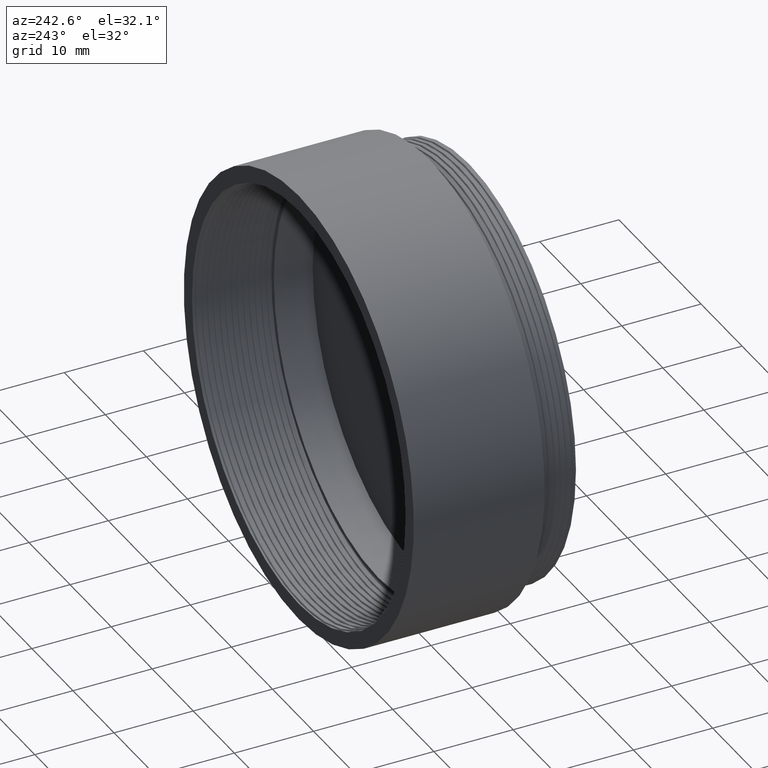
[diagram: clean part render]
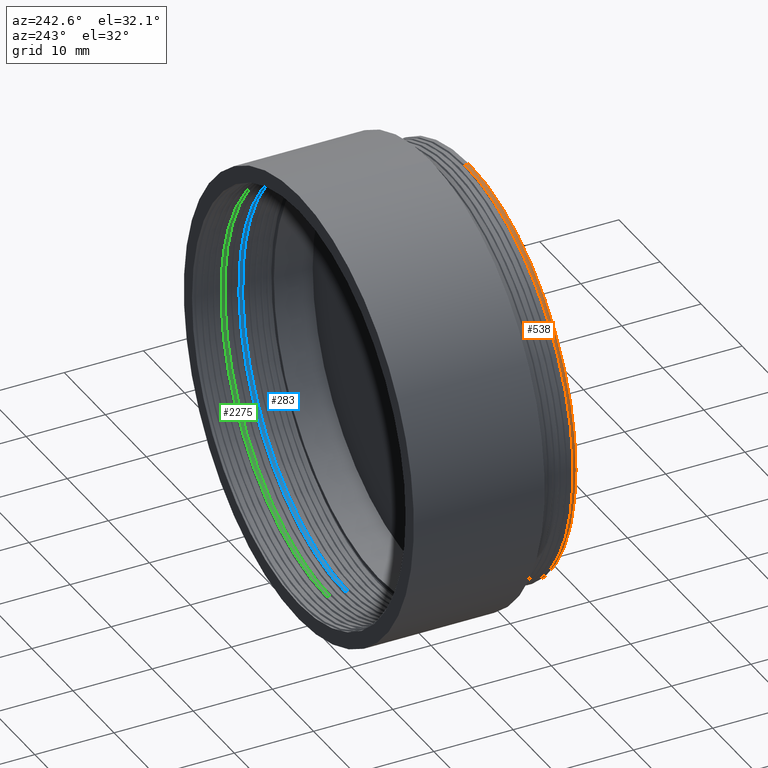
[diagram: same view with three faces highlighted in distinct colors, each labeled with its STEP entity id]
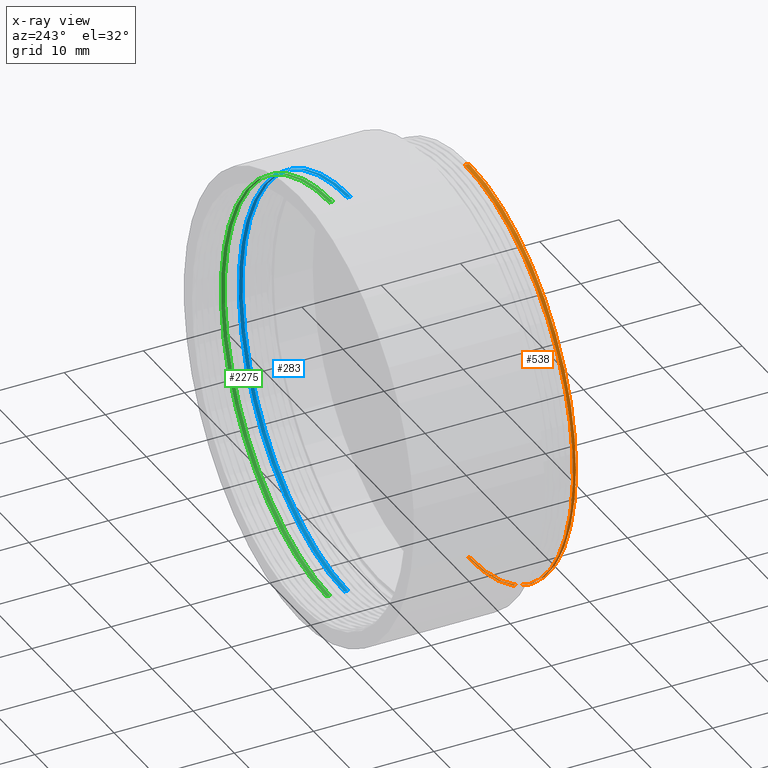
[diagram: x-ray of the same camera — body ghosted, the three highlighted faces saturated]
A machine part, auxiliary view with three faces highlighted in distinct colors.
The next image is the same camera in x-ray (body ghosted, the three faces saturated) — at least one of them is partly hidden behind the body in this view.
Their STEP definitions:

[orange] entity #538 — the highlighted cylindrical surface (partial cylindrical patch) has radius 26 mm, axis along (-0, -1, -0).
#91 = DIRECTION ( 'NONE',  ( 0.000000000000000000, 0.000000000000000000, -1.000000000000000000 ) ) ;
#223 = CARTESIAN_POINT ( 'NONE',  ( -10.76955262170047156, 0.2343750000000000000, -26.00000000000000000 ) ) ;
#538 = ADVANCED_FACE ( 'NONE', ( #2062 ), #2008, .T. ) ;
#656 = CARTESIAN_POINT ( 'NONE',  ( -10.76955262170047867, 0.5156250000000000000, 25.99999999999999645 ) ) ;
#965 = ORIENTED_EDGE ( 'NONE', *, *, #3501, .F. ) ;
#1022 = CARTESIAN_POINT ( 'NONE',  ( 1.592040838891559095E-15, 0.1875000000000000000, -26.00000000000000000 ) ) ;
#1150 = DIRECTION ( 'NONE',  ( 0.000000000000000000, 0.000000000000000000, -1.000000000000000000 ) ) ;
#1249 = ORIENTED_EDGE ( 'NONE', *, *, #1255, .F. ) ;
#1255 = EDGE_CURVE ( 'NONE', #3379, #5002, #3756, .T. ) ;
#1396 = CARTESIAN_POINT ( 'NONE',  ( 3.184081677783118191E-15, 0.000000000000000000, 26.00000000000000000 ) ) ;
#1668 = VERTEX_POINT ( 'NONE', #2141 ) ;
#1845 = CARTESIAN_POINT ( 'NONE',  ( 0.000000000000000000, 0.000000000000000000, 0.000000000000000000 ) ) ;
#1847 = VECTOR ( 'NONE', #4295, 1000.000000000000000 ) ;
#1915 = CARTESIAN_POINT ( 'NONE',  ( -18.38477631085023134, 0.2812500000000000555, -18.38477631085023489 ) ) ;
#2008 = CYLINDRICAL_SURFACE ( 'NONE', #2433, 26.00000000000000000 ) ;
#2062 = FACE_OUTER_BOUND ( 'NONE', #3629, .T. ) ;
#2141 = CARTESIAN_POINT ( 'NONE',  ( -4.776122516674677089E-15, 0.5625000000000001110, 26.00000000000000000 ) ) ;
#2332 = CARTESIAN_POINT ( 'NONE',  ( -18.38477631085023845, 0.4687500000000000000, 18.38477631085023134 ) ) ;
#2433 = AXIS2_PLACEMENT_3D ( 'NONE', #2864, #5368, #1150 ) ;
#2714 = CARTESIAN_POINT ( 'NONE',  ( -4.776122516674677089E-15, 0.5625000000000001110, 26.00000000000000000 ) ) ;
#2798 = CARTESIAN_POINT ( 'NONE',  ( -26.00000000000000000, 0.3281250000000000555, -10.76955262170047334 ) ) ;
#2864 = CARTESIAN_POINT ( 'NONE',  ( 0.000000000000000000, 0.000000000000000000, 0.000000000000000000 ) ) ;
#2912 = EDGE_CURVE ( 'NONE', #5151, #5002, #4328, .T. ) ;
#2938 = CARTESIAN_POINT ( 'NONE',  ( 3.184081677783118191E-15, 0.000000000000000000, 26.00000000000000000 ) ) ;
#2977 = EDGE_CURVE ( 'NONE', #1668, #3379, #5194, .T. ) ;
#3027 = DIRECTION ( 'NONE',  ( -0.000000000000000000, -1.000000000000000000, -0.000000000000000000 ) ) ;
#3054 = DIRECTION ( 'NONE',  ( -0.000000000000000000, -1.000000000000000000, -0.000000000000000000 ) ) ;
#3271 = VECTOR ( 'NONE', #3054, 1000.000000000000000 ) ;
#3379 = VERTEX_POINT ( 'NONE', #2938 ) ;
#3405 = CARTESIAN_POINT ( 'NONE',  ( 0.000000000000000000, 0.000000000000000000, -26.00000000000000000 ) ) ;
#3462 =( BOUNDED_CURVE ( )  B_SPLINE_CURVE ( 2, ( #1022, #223, #1915, #2798, #4490, #3608, #2332, #656, #2714 ),
 .UNSPECIFIED., .F., .T. ) 
 B_SPLINE_CURVE_WITH_KNOTS ( ( 3, 2, 2, 2, 3 ),
 ( 0.03571428571428571230, 0.05357142857142857539, 0.07142857142857142461, 0.08928571428571430157, 0.1071428571428571508 ),
 .UNSPECIFIED. ) 
 CURVE ( )  GEOMETRIC_REPRESENTATION_ITEM ( )  RATIONAL_B_SPLINE_CURVE ( ( 1.000000000000000000, 0.9238795325112867385, 1.000000000000000000, 0.9238795325112867385, 1.000000000000000000, 0.9238795325112867385, 1.000000000000000000, 0.9238795325112866275, 1.000000000000000000 ) ) 
 REPRESENTATION_ITEM ( '' )  );
#3501 = EDGE_CURVE ( 'NONE', #5151, #1668, #3462, .T. ) ;
#3504 = CARTESIAN_POINT ( 'NONE',  ( 0.000000000000000000, 0.000000000000000000, -26.00000000000000000 ) ) ;
#3608 = CARTESIAN_POINT ( 'NONE',  ( -26.00000000000001066, 0.4218750000000000000, 10.76955262170046623 ) ) ;
#3629 = EDGE_LOOP ( 'NONE', ( #4879, #965, #4418, #1249 ) ) ;
#3756 = CIRCLE ( 'NONE', #5170, 26.00000000000000000 ) ;
#4295 = DIRECTION ( 'NONE',  ( -0.000000000000000000, -1.000000000000000000, -0.000000000000000000 ) ) ;
#4328 = LINE ( 'NONE', #3504, #1847 ) ;
#4418 = ORIENTED_EDGE ( 'NONE', *, *, #2912, .T. ) ;
#4438 = CARTESIAN_POINT ( 'NONE',  ( 1.592040838891559095E-15, 0.1875000000000000000, -26.00000000000000000 ) ) ;
#4490 = CARTESIAN_POINT ( 'NONE',  ( -26.00000000000000000, 0.3750000000000000000, -3.184081677783118191E-15 ) ) ;
#4879 = ORIENTED_EDGE ( 'NONE', *, *, #2977, .F. ) ;
#5002 = VERTEX_POINT ( 'NONE', #3405 ) ;
#5151 = VERTEX_POINT ( 'NONE', #4438 ) ;
#5170 = AXIS2_PLACEMENT_3D ( 'NONE', #1845, #3027, #91 ) ;
#5194 = LINE ( 'NONE', #1396, #3271 ) ;
#5368 = DIRECTION ( 'NONE',  ( -0.000000000000000000, -1.000000000000000000, -0.000000000000000000 ) ) ;

[blue] entity #283 — the highlighted cylindrical surface (partial cylindrical patch) has radius 26 mm, axis along (-0, -1, -0).
#70 = EDGE_CURVE ( 'NONE', #3847, #307, #4917, .T. ) ;
#276 = CARTESIAN_POINT ( 'NONE',  ( 4.776122516674677089E-15, 15.40968750086715033, 26.00000000000000000 ) ) ;
#283 = ADVANCED_FACE ( 'NONE', ( #4870 ), #5193, .F. ) ;
#307 = VERTEX_POINT ( 'NONE', #1065 ) ;
#378 = CARTESIAN_POINT ( 'NONE',  ( 26.00000000000000000, 15.17187499999999822, -10.76955262170047334 ) ) ;
#769 = VECTOR ( 'NONE', #1708, 1000.000000000000000 ) ;
#1065 = CARTESIAN_POINT ( 'NONE',  ( 4.776122516674677089E-15, 14.93750000000000000, 26.00000000000000000 ) ) ;
#1359 = DIRECTION ( 'NONE',  ( -0.000000000000000000, -1.000000000000000000, -0.000000000000000000 ) ) ;
#1387 = EDGE_LOOP ( 'NONE', ( #3746, #1471, #4923, #1955 ) ) ;
#1471 = ORIENTED_EDGE ( 'NONE', *, *, #3642, .F. ) ;
#1631 = CARTESIAN_POINT ( 'NONE',  ( 26.00000000000000000, 15.59718750086715033, -3.184081677783118191E-15 ) ) ;
#1632 = CARTESIAN_POINT ( 'NONE',  ( 26.00000000000000000, 15.12499999999999822, -3.184081677783118191E-15 ) ) ;
#1708 = DIRECTION ( 'NONE',  ( -0.000000000000000000, -1.000000000000000000, -0.000000000000000000 ) ) ;
#1812 = CARTESIAN_POINT ( 'NONE',  ( -1.592040838891559095E-15, 15.78468750086714856, -26.00000000000000000 ) ) ;
#1955 = ORIENTED_EDGE ( 'NONE', *, *, #2173, .T. ) ;
#2077 = CARTESIAN_POINT ( 'NONE',  ( 26.00000000000000000, 15.64406250086715033, -10.76955262170047334 ) ) ;
#2078 = CARTESIAN_POINT ( 'NONE',  ( -1.592040838891559095E-15, 15.31249999999999822, -26.00000000000000000 ) ) ;
#2173 = EDGE_CURVE ( 'NONE', #5181, #307, #2724, .T. ) ;
#2255 = CARTESIAN_POINT ( 'NONE',  ( 0.000000000000000000, 0.000000000000000000, 0.000000000000000000 ) ) ;
#2389 = CARTESIAN_POINT ( 'NONE',  ( 10.76955262170047156, 15.73781250086715033, -26.00000000000000000 ) ) ;
#2414 = CARTESIAN_POINT ( 'NONE',  ( 18.38477631085023845, 15.50343750086715033, 18.38477631085023134 ) ) ;
#2468 = CARTESIAN_POINT ( 'NONE',  ( 18.38477631085023134, 15.21874999999999822, -18.38477631085023489 ) ) ;
#2724 =( BOUNDED_CURVE ( )  B_SPLINE_CURVE ( 2, ( #2078, #3739, #2468, #378, #1632, #3762, #3324, #5486, #5436 ),
 .UNSPECIFIED., .F., .F. ) 
 B_SPLINE_CURVE_WITH_KNOTS ( ( 3, 2, 2, 2, 3 ),
 ( 0.5892857142857143016, 0.5982142857142856984, 0.6071428571428569843, 0.6160714285714284921, 0.6249999999999998890 ),
 .UNSPECIFIED. ) 
 CURVE ( )  GEOMETRIC_REPRESENTATION_ITEM ( )  RATIONAL_B_SPLINE_CURVE ( ( 1.000000000000000000, 0.9238795325112867385, 1.000000000000000000, 0.9238795325112867385, 1.000000000000000000, 0.9238795325112867385, 1.000000000000000000, 0.9238795325112877377, 0.9999999999999990008 ) ) 
 REPRESENTATION_ITEM ( '' )  );
#2876 = CARTESIAN_POINT ( 'NONE',  ( -1.592040838891559095E-15, 15.78468750086714856, -26.00000000000000000 ) ) ;
#2935 = VERTEX_POINT ( 'NONE', #1812 ) ;
#3159 = CARTESIAN_POINT ( 'NONE',  ( 0.000000000000000000, 0.000000000000000000, -26.00000000000000000 ) ) ;
#3173 = DIRECTION ( 'NONE',  ( -0.000000000000000000, -1.000000000000000000, -0.000000000000000000 ) ) ;
#3176 = VECTOR ( 'NONE', #1359, 1000.000000000000000 ) ;
#3246 = CARTESIAN_POINT ( 'NONE',  ( 26.00000000000001066, 15.55031250086715211, 10.76955262170046623 ) ) ;
#3324 = CARTESIAN_POINT ( 'NONE',  ( 18.38477631085023845, 15.03124999999999822, 18.38477631085023134 ) ) ;
#3396 = AXIS2_PLACEMENT_3D ( 'NONE', #2255, #3173, #4419 ) ;
#3605 = EDGE_CURVE ( 'NONE', #2935, #5181, #5270, .T. ) ;
#3642 = EDGE_CURVE ( 'NONE', #2935, #3847, #4603, .T. ) ;
#3739 = CARTESIAN_POINT ( 'NONE',  ( 10.76955262170047156, 15.26562499999999822, -26.00000000000000000 ) ) ;
#3746 = ORIENTED_EDGE ( 'NONE', *, *, #70, .F. ) ;
#3762 = CARTESIAN_POINT ( 'NONE',  ( 26.00000000000001066, 15.07812500000000000, 10.76955262170046623 ) ) ;
#3847 = VERTEX_POINT ( 'NONE', #5040 ) ;
#4125 = CARTESIAN_POINT ( 'NONE',  ( 10.76955262170059058, 15.45656250086715211, 25.99999999999988987 ) ) ;
#4419 = DIRECTION ( 'NONE',  ( 0.000000000000000000, 0.000000000000000000, -1.000000000000000000 ) ) ;
#4495 = CARTESIAN_POINT ( 'NONE',  ( 3.184081677783118191E-15, 0.000000000000000000, 26.00000000000000000 ) ) ;
#4603 =( BOUNDED_CURVE ( )  B_SPLINE_CURVE ( 2, ( #2876, #2389, #5458, #2077, #1631, #3246, #2414, #4125, #276 ),
 .UNSPECIFIED., .F., .T. ) 
 B_SPLINE_CURVE_WITH_KNOTS ( ( 3, 2, 2, 2, 3 ),
 ( 0.5178571428571429047, 0.5267857142857143016, 0.5357142857142855874, 0.5446428571428569843, 0.5535714285714284921 ),
 .UNSPECIFIED. ) 
 CURVE ( )  GEOMETRIC_REPRESENTATION_ITEM ( )  RATIONAL_B_SPLINE_CURVE ( ( 1.000000000000000000, 0.9238795325112867385, 1.000000000000000000, 0.9238795325112867385, 1.000000000000000000, 0.9238795325112867385, 1.000000000000000000, 0.9238795325112877377, 0.9999999999999990008 ) ) 
 REPRESENTATION_ITEM ( '' )  );
#4870 = FACE_OUTER_BOUND ( 'NONE', #1387, .T. ) ;
#4917 = LINE ( 'NONE', #4495, #769 ) ;
#4923 = ORIENTED_EDGE ( 'NONE', *, *, #3605, .T. ) ;
#5040 = CARTESIAN_POINT ( 'NONE',  ( 4.776122516674677089E-15, 15.40968750086715033, 26.00000000000000000 ) ) ;
#5181 = VERTEX_POINT ( 'NONE', #5216 ) ;
#5193 = CYLINDRICAL_SURFACE ( 'NONE', #3396, 26.00000000000000000 ) ;
#5216 = CARTESIAN_POINT ( 'NONE',  ( -1.592040838891559095E-15, 15.31249999999999822, -26.00000000000000000 ) ) ;
#5270 = LINE ( 'NONE', #3159, #3176 ) ;
#5436 = CARTESIAN_POINT ( 'NONE',  ( 4.776122516674677089E-15, 14.93750000000000000, 26.00000000000000000 ) ) ;
#5458 = CARTESIAN_POINT ( 'NONE',  ( 18.38477631085023134, 15.69093750086714856, -18.38477631085023489 ) ) ;
#5486 = CARTESIAN_POINT ( 'NONE',  ( 10.76955262170059058, 14.98437499999999822, 25.99999999999988987 ) ) ;

[green] entity #2275 — the highlighted cylindrical surface (partial cylindrical patch) has radius 26 mm, axis along (-0, -1, -0).
#221 = CARTESIAN_POINT ( 'NONE',  ( 10.76955262170042005, 17.98781250086715033, -26.00000000000004263 ) ) ;
#304 = EDGE_LOOP ( 'NONE', ( #5302, #4238, #1503, #1002 ) ) ;
#461 = CARTESIAN_POINT ( 'NONE',  ( 3.184081677783118191E-15, 0.000000000000000000, 26.00000000000000000 ) ) ;
#763 = DIRECTION ( 'NONE',  ( 0.000000000000000000, 0.000000000000000000, -1.000000000000000000 ) ) ;
#1002 = ORIENTED_EDGE ( 'NONE', *, *, #1467, .T. ) ;
#1006 = CARTESIAN_POINT ( 'NONE',  ( -1.592040838891559095E-15, 17.56250000000000000, -26.00000000000000000 ) ) ;
#1048 = CARTESIAN_POINT ( 'NONE',  ( -1.592040838891559095E-15, 18.03468750086715033, -26.00000000000000000 ) ) ;
#1078 = LINE ( 'NONE', #1969, #5103 ) ;
#1079 = CARTESIAN_POINT ( 'NONE',  ( 26.00000000000001066, 17.80031250086714678, 10.76955262170046623 ) ) ;
#1096 = CARTESIAN_POINT ( 'NONE',  ( -1.592040838891559095E-15, 17.56250000000000000, -26.00000000000000000 ) ) ;
#1181 = CARTESIAN_POINT ( 'NONE',  ( -1.592040838891559095E-15, 18.03468750086715033, -26.00000000000000000 ) ) ;
#1458 = VERTEX_POINT ( 'NONE', #1960 ) ;
#1467 = EDGE_CURVE ( 'NONE', #4738, #1458, #1795, .T. ) ;
#1497 = CARTESIAN_POINT ( 'NONE',  ( 26.00000000000000000, 17.89406250086714678, -10.76955262170047334 ) ) ;
#1503 = ORIENTED_EDGE ( 'NONE', *, *, #5408, .T. ) ;
#1520 = VERTEX_POINT ( 'NONE', #1181 ) ;
#1595 =( BOUNDED_CURVE ( )  B_SPLINE_CURVE ( 2, ( #1048, #221, #1913, #1497, #3190, #1079, #3218, #2797, #1970 ),
 .UNSPECIFIED., .F., .F. ) 
 B_SPLINE_CURVE_WITH_KNOTS ( ( 3, 2, 2, 2, 3 ),
 ( 0.3035714285714284921, 0.3124999999999999445, 0.3214285714285713969, 0.3303571428571427382, 0.3392857142857141906 ),
 .UNSPECIFIED. ) 
 CURVE ( )  GEOMETRIC_REPRESENTATION_ITEM ( )  RATIONAL_B_SPLINE_CURVE ( ( 1.000000000000000444, 0.9238795325112862944, 1.000000000000000000, 0.9238795325112867385, 1.000000000000000000, 0.9238795325112867385, 1.000000000000000000, 0.9238795325112877377, 0.9999999999999990008 ) ) 
 REPRESENTATION_ITEM ( '' )  );
#1599 = CARTESIAN_POINT ( 'NONE',  ( 26.00000000000000000, 17.42187499999999645, -10.76955262170047334 ) ) ;
#1621 = CARTESIAN_POINT ( 'NONE',  ( 18.38477631085023845, 17.28124999999999645, 18.38477631085023134 ) ) ;
#1701 = EDGE_CURVE ( 'NONE', #2604, #1458, #4269, .T. ) ;
#1795 =( BOUNDED_CURVE ( )  B_SPLINE_CURVE ( 2, ( #1096, #2784, #5343, #1599, #2869, #4615, #1621, #4982, #4194 ),
 .UNSPECIFIED., .F., .F. ) 
 B_SPLINE_CURVE_WITH_KNOTS ( ( 3, 2, 2, 2, 3 ),
 ( 0.3750000000000000000, 0.3839285714285714524, 0.3928571428571428492, 0.4017857142857143016, 0.4107142857142856984 ),
 .UNSPECIFIED. ) 
 CURVE ( )  GEOMETRIC_REPRESENTATION_ITEM ( )  RATIONAL_B_SPLINE_CURVE ( ( 1.000000000000000000, 0.9238795325112867385, 1.000000000000000000, 0.9238795325112867385, 1.000000000000000000, 0.9238795325112867385, 1.000000000000000000, 0.9238795325112867385, 1.000000000000000000 ) ) 
 REPRESENTATION_ITEM ( '' )  );
#1913 = CARTESIAN_POINT ( 'NONE',  ( 18.38477631085023134, 17.94093750086715033, -18.38477631085023489 ) ) ;
#1960 = CARTESIAN_POINT ( 'NONE',  ( 4.776122516674677089E-15, 17.18749999999999645, 26.00000000000000000 ) ) ;
#1969 = CARTESIAN_POINT ( 'NONE',  ( 0.000000000000000000, 0.000000000000000000, -26.00000000000000000 ) ) ;
#1970 = CARTESIAN_POINT ( 'NONE',  ( 4.776122516674677089E-15, 17.65968750086715033, 26.00000000000000000 ) ) ;
#2024 = DIRECTION ( 'NONE',  ( -0.000000000000000000, -1.000000000000000000, -0.000000000000000000 ) ) ;
#2275 = ADVANCED_FACE ( 'NONE', ( #4654 ), #4126, .F. ) ;
#2474 = VECTOR ( 'NONE', #3469, 1000.000000000000000 ) ;
#2547 = CARTESIAN_POINT ( 'NONE',  ( 0.000000000000000000, 0.000000000000000000, 0.000000000000000000 ) ) ;
#2604 = VERTEX_POINT ( 'NONE', #5268 ) ;
#2605 = EDGE_CURVE ( 'NONE', #1520, #2604, #1595, .T. ) ;
#2784 = CARTESIAN_POINT ( 'NONE',  ( 10.76955262170047156, 17.51562500000000000, -26.00000000000000000 ) ) ;
#2797 = CARTESIAN_POINT ( 'NONE',  ( 10.76955262170059058, 17.70656250086715033, 25.99999999999988987 ) ) ;
#2869 = CARTESIAN_POINT ( 'NONE',  ( 26.00000000000000000, 17.37499999999999645, -3.184081677783118191E-15 ) ) ;
#3190 = CARTESIAN_POINT ( 'NONE',  ( 26.00000000000000000, 17.84718750086715033, -3.184081677783118191E-15 ) ) ;
#3218 = CARTESIAN_POINT ( 'NONE',  ( 18.38477631085023845, 17.75343750086715033, 18.38477631085023134 ) ) ;
#3469 = DIRECTION ( 'NONE',  ( -0.000000000000000000, -1.000000000000000000, -0.000000000000000000 ) ) ;
#4126 = CYLINDRICAL_SURFACE ( 'NONE', #4920, 26.00000000000000000 ) ;
#4194 = CARTESIAN_POINT ( 'NONE',  ( 4.776122516674677089E-15, 17.18749999999999645, 26.00000000000000000 ) ) ;
#4238 = ORIENTED_EDGE ( 'NONE', *, *, #2605, .F. ) ;
#4269 = LINE ( 'NONE', #461, #2474 ) ;
#4615 = CARTESIAN_POINT ( 'NONE',  ( 26.00000000000001066, 17.32812500000000000, 10.76955262170046623 ) ) ;
#4654 = FACE_OUTER_BOUND ( 'NONE', #304, .T. ) ;
#4738 = VERTEX_POINT ( 'NONE', #1006 ) ;
#4920 = AXIS2_PLACEMENT_3D ( 'NONE', #2547, #2024, #763 ) ;
#4965 = DIRECTION ( 'NONE',  ( -0.000000000000000000, -1.000000000000000000, -0.000000000000000000 ) ) ;
#4982 = CARTESIAN_POINT ( 'NONE',  ( 10.76955262170048577, 17.23437499999999645, 25.99999999999999289 ) ) ;
#5103 = VECTOR ( 'NONE', #4965, 1000.000000000000000 ) ;
#5268 = CARTESIAN_POINT ( 'NONE',  ( 4.776122516674677089E-15, 17.65968750086715033, 26.00000000000000000 ) ) ;
#5302 = ORIENTED_EDGE ( 'NONE', *, *, #1701, .F. ) ;
#5343 = CARTESIAN_POINT ( 'NONE',  ( 18.38477631085023134, 17.46874999999999645, -18.38477631085023489 ) ) ;
#5408 = EDGE_CURVE ( 'NONE', #1520, #4738, #1078, .T. ) ;